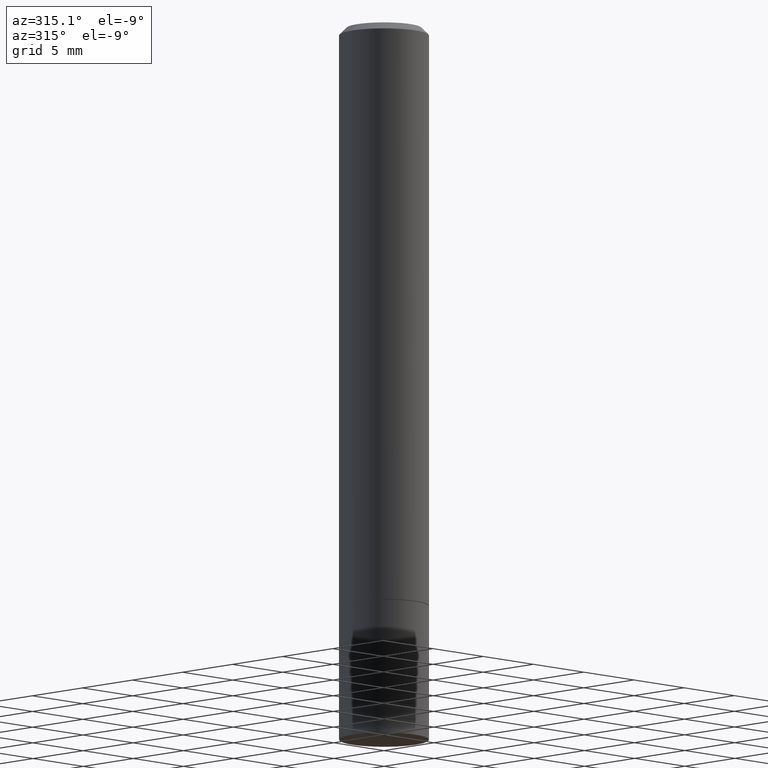
[diagram: clean part render]
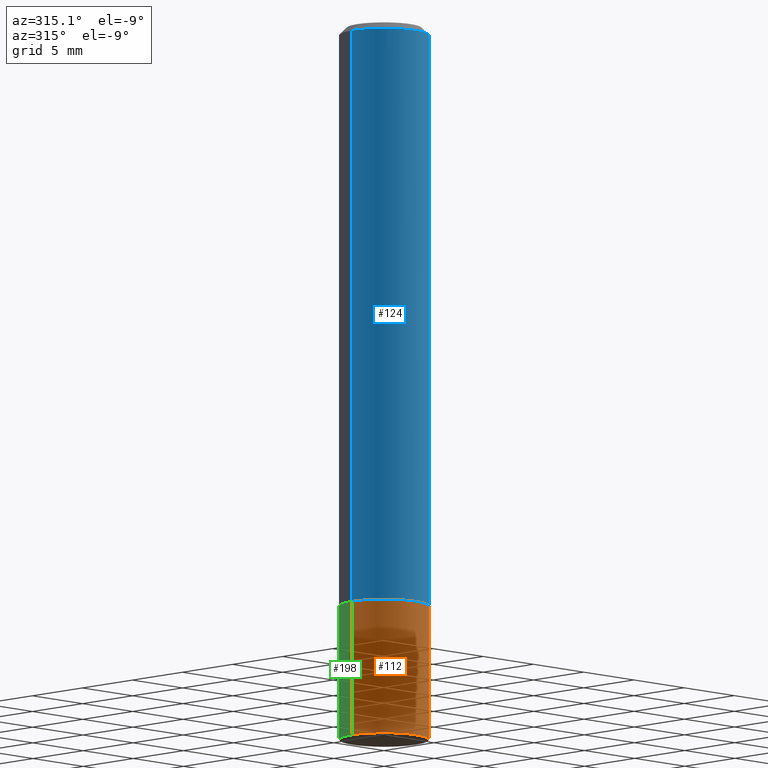
[diagram: same view with three faces highlighted in distinct colors, each labeled with its STEP entity id]
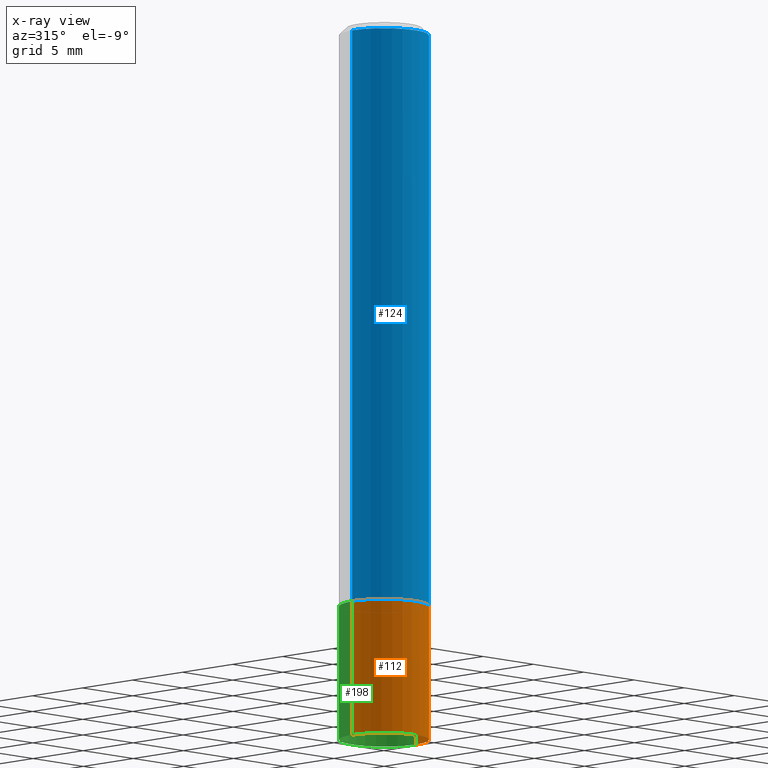
[diagram: x-ray of the same camera — body ghosted, the three highlighted faces saturated]
A machine part, auxiliary view with three faces highlighted in distinct colors.
The next image is the same camera in x-ray (body ghosted, the three faces saturated) — at least one of them is partly hidden behind the body in this view.
Their STEP definitions:

[orange] entity #112 — the highlighted cylindrical surface (partial cylindrical patch) has radius 3.175 mm, axis along (-0, 0, 1).
#2 = CIRCLE ( 'NONE', #200, 0.1250000000000000000 ) ;
#13 = CIRCLE ( 'NONE', #165, 0.1250000000000000000 ) ;
#22 = EDGE_CURVE ( 'NONE', #213, #143, #203, .T. ) ;
#38 = AXIS2_PLACEMENT_3D ( 'NONE', #155, #278, #133 ) ;
#39 = DIRECTION ( 'NONE',  ( 1.000000000000000000, -6.982962677686262766E-15, 0.000000000000000000 ) ) ;
#75 = ORIENTED_EDGE ( 'NONE', *, *, #303, .F. ) ;
#81 = DIRECTION ( 'NONE',  ( 1.000000000000000000, -6.982962677686270655E-15, 0.000000000000000000 ) ) ;
#94 = DIRECTION ( 'NONE',  ( -2.445468806185136877E-29, 3.491481338843145188E-15, 1.000000000000000000 ) ) ;
#102 = EDGE_CURVE ( 'NONE', #343, #213, #2, .T. ) ;
#112 = ADVANCED_FACE ( 'NONE', ( #326 ), #158, .T. ) ;
#133 = DIRECTION ( 'NONE',  ( 1.000000000000000000, -6.982962677686266711E-15, 4.876176775795935793E-29 ) ) ;
#134 = CARTESIAN_POINT ( 'NONE',  ( -0.1250000000000000000, -5.440131506953076851E-15, -2.000000000000000000 ) ) ;
#143 = VERTEX_POINT ( 'NONE', #246 ) ;
#153 = ORIENTED_EDGE ( 'NONE', *, *, #22, .T. ) ;
#155 = CARTESIAN_POINT ( 'NONE',  ( 0.000000000000000000, 0.000000000000000000, 0.000000000000000000 ) ) ;
#158 = CYLINDRICAL_SURFACE ( 'NONE', #38, 0.1250000000000000000 ) ;
#165 = AXIS2_PLACEMENT_3D ( 'NONE', #355, #183, #39 ) ;
#179 = ORIENTED_EDGE ( 'NONE', *, *, #319, .F. ) ;
#183 = DIRECTION ( 'NONE',  ( -2.445468806185136597E-29, 3.491481338843145583E-15, 1.000000000000000000 ) ) ;
#185 = VECTOR ( 'NONE', #94, 39.37007874015748143 ) ;
#196 = ORIENTED_EDGE ( 'NONE', *, *, #102, .T. ) ;
#200 = AXIS2_PLACEMENT_3D ( 'NONE', #210, #328, #81 ) ;
#203 = LINE ( 'NONE', #331, #281 ) ;
#210 = CARTESIAN_POINT ( 'NONE',  ( 4.890937612370273194E-29, -6.982962677686291165E-15, -2.000000000000000000 ) ) ;
#213 = VERTEX_POINT ( 'NONE', #282 ) ;
#234 = LINE ( 'NONE', #340, #185 ) ;
#246 = CARTESIAN_POINT ( 'NONE',  ( 0.1250000000000000000, -6.546527510330894763E-15, -1.625000000000000000 ) ) ;
#258 = DIRECTION ( 'NONE',  ( -2.445468806185136877E-29, 3.491481338843145188E-15, 1.000000000000000000 ) ) ;
#274 = EDGE_LOOP ( 'NONE', ( #75, #196, #153, #179 ) ) ;
#278 = DIRECTION ( 'NONE',  ( -2.445468806185136597E-29, 3.491481338843145583E-15, 1.000000000000000000 ) ) ;
#281 = VECTOR ( 'NONE', #258, 39.37007874015748143 ) ;
#282 = CARTESIAN_POINT ( 'NONE',  ( 0.1250000000000000000, -7.855833012397075293E-15, -2.000000000000000000 ) ) ;
#303 = EDGE_CURVE ( 'NONE', #343, #361, #234, .T. ) ;
#319 = EDGE_CURVE ( 'NONE', #361, #143, #13, .T. ) ;
#326 = FACE_OUTER_BOUND ( 'NONE', #274, .T. ) ;
#328 = DIRECTION ( 'NONE',  ( -2.445468806185136597E-29, 3.491481338843145583E-15, 1.000000000000000000 ) ) ;
#331 = CARTESIAN_POINT ( 'NONE',  ( 0.1250000000000000000, -8.728703347107833388E-16, 6.095220969744919741E-30 ) ) ;
#340 = CARTESIAN_POINT ( 'NONE',  ( -0.1250000000000000000, 8.881784197001252323E-16, -6.148668862818632227E-30 ) ) ;
#343 = VERTEX_POINT ( 'NONE', #134 ) ;
#350 = CARTESIAN_POINT ( 'NONE',  ( -0.1250000000000000000, -5.440131506953076851E-15, -1.625000000000000000 ) ) ;
#355 = CARTESIAN_POINT ( 'NONE',  ( 3.973886810050846970E-29, -5.673657175620112213E-15, -1.625000000000000000 ) ) ;
#361 = VERTEX_POINT ( 'NONE', #350 ) ;

[blue] entity #124 — the highlighted cylindrical surface (partial cylindrical patch) has radius 3.175 mm, axis along (-0, 0, 1).
#4 = CARTESIAN_POINT ( 'NONE',  ( 0.1250000000000000000, -6.543036028992051756E-15, -1.623999999999999888 ) ) ;
#8 = CARTESIAN_POINT ( 'NONE',  ( 0.1249999999999997780, -9.273918764983027713E-16, -0.02000000000000003511 ) ) ;
#21 = DIRECTION ( 'NONE',  ( -2.445468806185136597E-29, 3.491481338843145583E-15, 1.000000000000000000 ) ) ;
#42 = DIRECTION ( 'NONE',  ( -2.445468806185136597E-29, 3.491481338843145583E-15, 1.000000000000000000 ) ) ;
#43 = CYLINDRICAL_SURFACE ( 'NONE', #73, 0.1249999999999999029 ) ;
#44 = CARTESIAN_POINT ( 'NONE',  ( 4.890937612370281041E-31, -6.982962677686302702E-17, -0.02000000000000003511 ) ) ;
#47 = CARTESIAN_POINT ( 'NONE',  ( -0.1249999999999997780, 8.030407079339188573E-16, -0.02000000000000003511 ) ) ;
#65 = VERTEX_POINT ( 'NONE', #47 ) ;
#73 = AXIS2_PLACEMENT_3D ( 'NONE', #151, #42, #275 ) ;
#78 = EDGE_CURVE ( 'NONE', #195, #230, #236, .T. ) ;
#82 = LINE ( 'NONE', #356, #297 ) ;
#85 = AXIS2_PLACEMENT_3D ( 'NONE', #300, #188, #104 ) ;
#104 = DIRECTION ( 'NONE',  ( 1.000000000000000000, -6.982962677686270655E-15, 0.000000000000000000 ) ) ;
#116 = EDGE_LOOP ( 'NONE', ( #117, #250, #316, #312 ) ) ;
#117 = ORIENTED_EDGE ( 'NONE', *, *, #308, .F. ) ;
#124 = ADVANCED_FACE ( 'NONE', ( #182 ), #43, .T. ) ;
#128 = CARTESIAN_POINT ( 'NONE',  ( -0.1249999999999999029, 8.881784197001245421E-16, -6.148668862818627323E-30 ) ) ;
#131 = CARTESIAN_POINT ( 'NONE',  ( -0.1250000000000000278, -1.981819240828937864E-15, -1.623999999999999888 ) ) ;
#151 = CARTESIAN_POINT ( 'NONE',  ( 0.000000000000000000, 0.000000000000000000, 0.000000000000000000 ) ) ;
#173 = EDGE_CURVE ( 'NONE', #230, #298, #82, .T. ) ;
#180 = CIRCLE ( 'NONE', #237, 0.1249999999999997780 ) ;
#182 = FACE_OUTER_BOUND ( 'NONE', #116, .T. ) ;
#188 = DIRECTION ( 'NONE',  ( -2.445468806185136597E-29, 3.491481338843145583E-15, 1.000000000000000000 ) ) ;
#195 = VERTEX_POINT ( 'NONE', #131 ) ;
#215 = VECTOR ( 'NONE', #242, 39.37007874015748143 ) ;
#225 = DIRECTION ( 'NONE',  ( 1.000000000000000000, -6.982962677686265922E-15, 0.000000000000000000 ) ) ;
#230 = VERTEX_POINT ( 'NONE', #4 ) ;
#236 = CIRCLE ( 'NONE', #85, 0.1250000000000000000 ) ;
#237 = AXIS2_PLACEMENT_3D ( 'NONE', #44, #21, #225 ) ;
#242 = DIRECTION ( 'NONE',  ( -2.445468806185136877E-29, 3.491481338843145188E-15, 1.000000000000000000 ) ) ;
#250 = ORIENTED_EDGE ( 'NONE', *, *, #78, .T. ) ;
#275 = DIRECTION ( 'NONE',  ( 1.000000000000000000, -6.982962677686266711E-15, 4.876176775795935793E-29 ) ) ;
#279 = LINE ( 'NONE', #128, #215 ) ;
#297 = VECTOR ( 'NONE', #360, 39.37007874015748143 ) ;
#298 = VERTEX_POINT ( 'NONE', #8 ) ;
#300 = CARTESIAN_POINT ( 'NONE',  ( 3.971441341244661927E-29, -5.670165694281268417E-15, -1.623999999999999888 ) ) ;
#308 = EDGE_CURVE ( 'NONE', #195, #65, #279, .T. ) ;
#312 = ORIENTED_EDGE ( 'NONE', *, *, #362, .F. ) ;
#316 = ORIENTED_EDGE ( 'NONE', *, *, #173, .T. ) ;
#356 = CARTESIAN_POINT ( 'NONE',  ( 0.1249999999999999029, -8.728703347107826486E-16, 6.095220969744914837E-30 ) ) ;
#360 = DIRECTION ( 'NONE',  ( -2.445468806185136877E-29, 3.491481338843145188E-15, 1.000000000000000000 ) ) ;
#362 = EDGE_CURVE ( 'NONE', #65, #298, #180, .T. ) ;

[green] entity #198 — the highlighted cylindrical surface (partial cylindrical patch) has radius 3.175 mm, axis along (-0, 0, 1).
#1 = CARTESIAN_POINT ( 'NONE',  ( 4.890937612370273194E-29, -6.982962677686291165E-15, -2.000000000000000000 ) ) ;
#22 = EDGE_CURVE ( 'NONE', #213, #143, #203, .T. ) ;
#29 = DIRECTION ( 'NONE',  ( 1.000000000000000000, -6.982962677686262766E-15, 0.000000000000000000 ) ) ;
#46 = DIRECTION ( 'NONE',  ( -2.445468806185136597E-29, 3.491481338843145583E-15, 1.000000000000000000 ) ) ;
#92 = ORIENTED_EDGE ( 'NONE', *, *, #332, .F. ) ;
#94 = DIRECTION ( 'NONE',  ( -2.445468806185136877E-29, 3.491481338843145188E-15, 1.000000000000000000 ) ) ;
#99 = EDGE_LOOP ( 'NONE', ( #289, #127, #92, #284 ) ) ;
#109 = DIRECTION ( 'NONE',  ( -2.445468806185136597E-29, 3.491481338843145583E-15, 1.000000000000000000 ) ) ;
#118 = AXIS2_PLACEMENT_3D ( 'NONE', #154, #46, #249 ) ;
#127 = ORIENTED_EDGE ( 'NONE', *, *, #303, .T. ) ;
#134 = CARTESIAN_POINT ( 'NONE',  ( -0.1250000000000000000, -5.440131506953076851E-15, -2.000000000000000000 ) ) ;
#143 = VERTEX_POINT ( 'NONE', #246 ) ;
#154 = CARTESIAN_POINT ( 'NONE',  ( 0.000000000000000000, 0.000000000000000000, 0.000000000000000000 ) ) ;
#185 = VECTOR ( 'NONE', #94, 39.37007874015748143 ) ;
#198 = ADVANCED_FACE ( 'NONE', ( #206 ), #320, .T. ) ;
#203 = LINE ( 'NONE', #331, #281 ) ;
#206 = FACE_OUTER_BOUND ( 'NONE', #99, .T. ) ;
#213 = VERTEX_POINT ( 'NONE', #282 ) ;
#219 = DIRECTION ( 'NONE',  ( -2.445468806185136597E-29, 3.491481338843145583E-15, 1.000000000000000000 ) ) ;
#221 = CIRCLE ( 'NONE', #262, 0.1250000000000000000 ) ;
#234 = LINE ( 'NONE', #340, #185 ) ;
#246 = CARTESIAN_POINT ( 'NONE',  ( 0.1250000000000000000, -6.546527510330894763E-15, -1.625000000000000000 ) ) ;
#249 = DIRECTION ( 'NONE',  ( 1.000000000000000000, -6.982962677686266711E-15, 4.876176775795935793E-29 ) ) ;
#258 = DIRECTION ( 'NONE',  ( -2.445468806185136877E-29, 3.491481338843145188E-15, 1.000000000000000000 ) ) ;
#259 = AXIS2_PLACEMENT_3D ( 'NONE', #1, #109, #290 ) ;
#262 = AXIS2_PLACEMENT_3D ( 'NONE', #352, #219, #29 ) ;
#281 = VECTOR ( 'NONE', #258, 39.37007874015748143 ) ;
#282 = CARTESIAN_POINT ( 'NONE',  ( 0.1250000000000000000, -7.855833012397075293E-15, -2.000000000000000000 ) ) ;
#284 = ORIENTED_EDGE ( 'NONE', *, *, #22, .F. ) ;
#285 = CIRCLE ( 'NONE', #259, 0.1250000000000000000 ) ;
#289 = ORIENTED_EDGE ( 'NONE', *, *, #345, .T. ) ;
#290 = DIRECTION ( 'NONE',  ( 1.000000000000000000, -6.982962677686270655E-15, 0.000000000000000000 ) ) ;
#303 = EDGE_CURVE ( 'NONE', #343, #361, #234, .T. ) ;
#320 = CYLINDRICAL_SURFACE ( 'NONE', #118, 0.1250000000000000000 ) ;
#331 = CARTESIAN_POINT ( 'NONE',  ( 0.1250000000000000000, -8.728703347107833388E-16, 6.095220969744919741E-30 ) ) ;
#332 = EDGE_CURVE ( 'NONE', #143, #361, #221, .T. ) ;
#340 = CARTESIAN_POINT ( 'NONE',  ( -0.1250000000000000000, 8.881784197001252323E-16, -6.148668862818632227E-30 ) ) ;
#343 = VERTEX_POINT ( 'NONE', #134 ) ;
#345 = EDGE_CURVE ( 'NONE', #213, #343, #285, .T. ) ;
#350 = CARTESIAN_POINT ( 'NONE',  ( -0.1250000000000000000, -5.440131506953076851E-15, -1.625000000000000000 ) ) ;
#352 = CARTESIAN_POINT ( 'NONE',  ( 3.973886810050846970E-29, -5.673657175620112213E-15, -1.625000000000000000 ) ) ;
#361 = VERTEX_POINT ( 'NONE', #350 ) ;